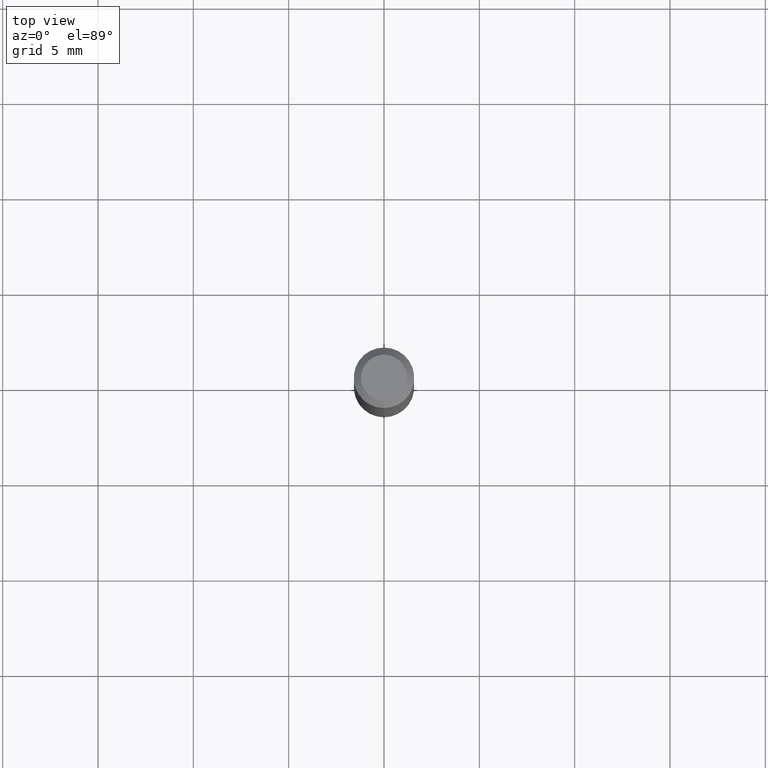
[diagram: clean part render]
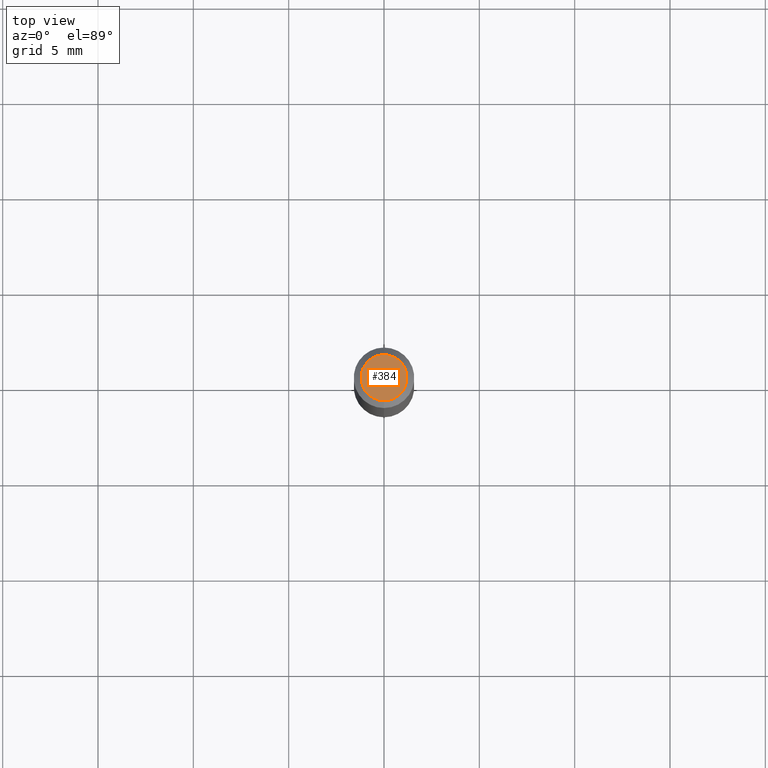
[diagram: same view with one face highlighted and labeled with its STEP entity id]
A machine part, top view. The second image highlights one B-rep face of the part: STEP entity #384.
In plain terms, the highlighted planar face has unit normal (0, -0, -1).
Its self-contained STEP definition (entity closure, byte-faithful):
#4 = ORIENTED_EDGE ( 'NONE', *, *, #453, .T. ) ;
#28 = VERTEX_POINT ( 'NONE', #144 ) ;
#38 = AXIS2_PLACEMENT_3D ( 'NONE', #383, #555, #120 ) ;
#87 = PLANE ( 'NONE',  #206 ) ;
#102 = ORIENTED_EDGE ( 'NONE', *, *, #338, .T. ) ;
#120 = DIRECTION ( 'NONE',  ( -6.982962677686266711E-15, -1.000000000000000000, 3.491390890275590487E-15 ) ) ;
#144 = CARTESIAN_POINT ( 'NONE',  ( 3.840629472727447874E-16, 0.04749999999999999362, -2.485923956665947374E-16 ) ) ;
#167 = AXIS2_PLACEMENT_3D ( 'NONE', #203, #348, #343 ) ;
#181 = CARTESIAN_POINT ( 'NONE',  ( -3.773273898774340269E-16, -0.04749999999999999362, 8.308973890958629777E-17 ) ) ;
#203 = CARTESIAN_POINT ( 'NONE',  ( 2.024012138521078874E-45, -2.888739930047974464E-31, -8.275132837850420749E-17 ) ) ;
#205 = FACE_OUTER_BOUND ( 'NONE', #416, .T. ) ;
#206 = AXIS2_PLACEMENT_3D ( 'NONE', #299, #435, #207 ) ;
#207 = DIRECTION ( 'NONE',  ( 6.982962677686265922E-15, 1.000000000000000000, -3.491390890275590093E-15 ) ) ;
#257 = CIRCLE ( 'NONE', #167, 0.04749999999999999362 ) ;
#299 = CARTESIAN_POINT ( 'NONE',  ( 3.316907271900976096E-16, 0.04749999999999999362, 3.181996796828036098E-17 ) ) ;
#338 = EDGE_CURVE ( 'NONE', #28, #518, #459, .T. ) ;
#343 = DIRECTION ( 'NONE',  ( -6.982962677686266711E-15, -1.000000000000000000, 3.491390890275590487E-15 ) ) ;
#348 = DIRECTION ( 'NONE',  ( -2.445531966082285698E-29, 3.491390890275590093E-15, 1.000000000000000000 ) ) ;
#383 = CARTESIAN_POINT ( 'NONE',  ( 2.024012138521078874E-45, -2.888739930047974464E-31, -8.275132837850420749E-17 ) ) ;
#384 = ADVANCED_FACE ( 'NONE', ( #205 ), #87, .F. ) ;
#416 = EDGE_LOOP ( 'NONE', ( #102, #4 ) ) ;
#435 = DIRECTION ( 'NONE',  ( 2.445531966082285417E-29, -3.491390890275590093E-15, -1.000000000000000000 ) ) ;
#453 = EDGE_CURVE ( 'NONE', #518, #28, #257, .T. ) ;
#459 = CIRCLE ( 'NONE', #38, 0.04749999999999999362 ) ;
#518 = VERTEX_POINT ( 'NONE', #181 ) ;
#555 = DIRECTION ( 'NONE',  ( -2.445531966082285698E-29, 3.491390890275590093E-15, 1.000000000000000000 ) ) ;